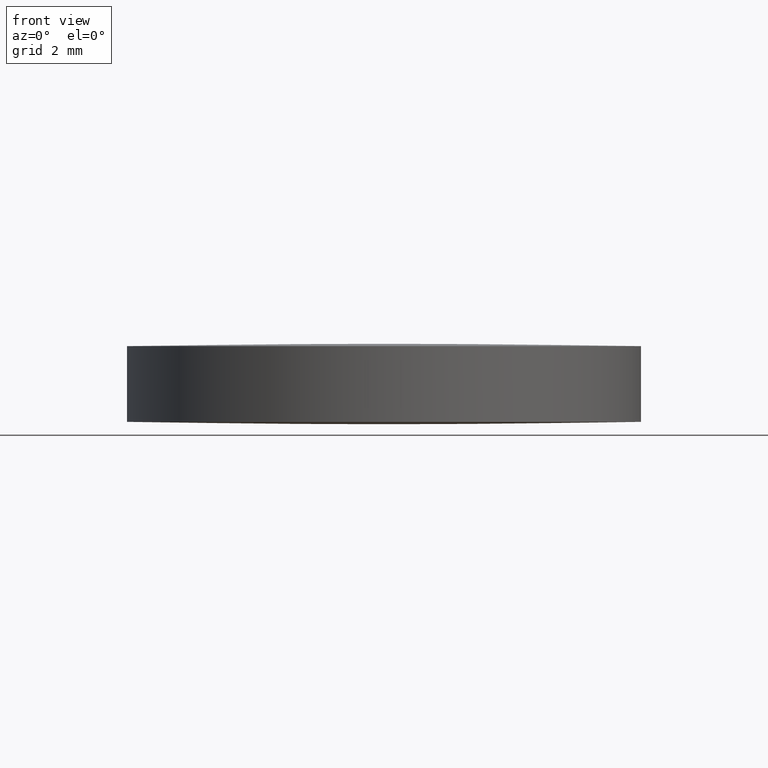
[diagram: clean part render]
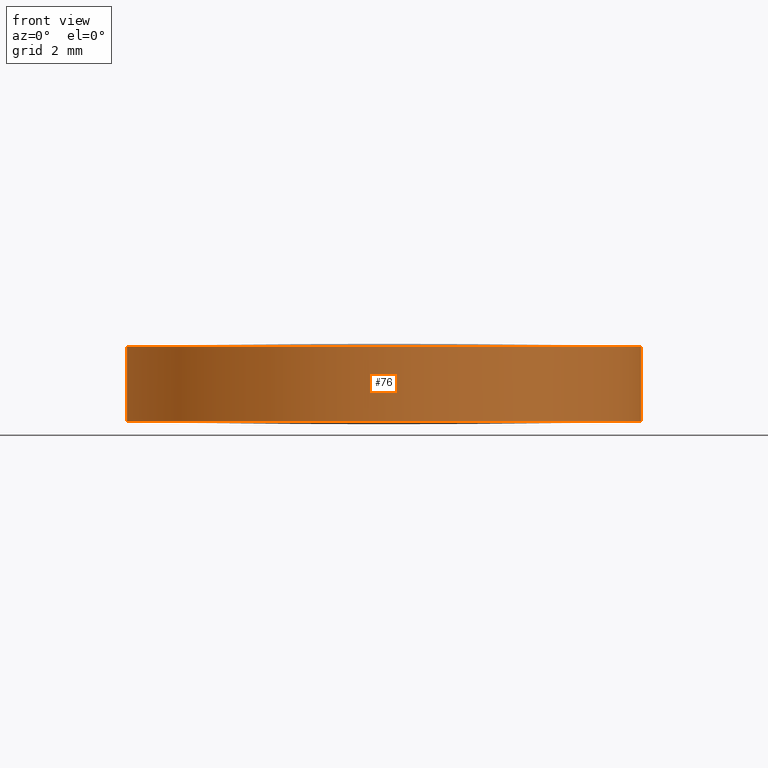
[diagram: same view with one face highlighted and labeled with its STEP entity id]
A machine part, front view. The second image highlights one B-rep face of the part: STEP entity #76.
In plain terms, the highlighted cylindrical surface (partial cylindrical patch) has radius 6.35 mm, axis along (0, 0, 1).
Its self-contained STEP definition (entity closure, byte-faithful):
#6 = ORIENTED_EDGE ( 'NONE', *, *, #123, .T. ) ;
#13 = CARTESIAN_POINT ( 'NONE',  ( 2.498001805406600200E-016, 1.221245327087670000E-015, 0.06485478633533430000 ) ) ;
#16 = ORIENTED_EDGE ( 'NONE', *, *, #143, .T. ) ;
#20 = LINE ( 'NONE', #110, #267 ) ;
#27 = CARTESIAN_POINT ( 'NONE',  ( 2.498001805406600200E-016, 1.221245327087670000E-015, 1.935145213664670100 ) ) ;
#28 = AXIS2_PLACEMENT_3D ( 'NONE', #132, #31, #199 ) ;
#31 = DIRECTION ( 'NONE',  ( -0.0000000000000000000, -0.0000000000000000000, -1.000000000000000000 ) ) ;
#37 = CYLINDRICAL_SURFACE ( 'NONE', #247, 6.349999999999999600 ) ;
#40 = DIRECTION ( 'NONE',  ( 1.000000000000000000, 0.0000000000000000000, 0.0000000000000000000 ) ) ;
#49 = AXIS2_PLACEMENT_3D ( 'NONE', #27, #134, #157 ) ;
#57 = DIRECTION ( 'NONE',  ( 0.0000000000000000000, 0.0000000000000000000, 1.000000000000000000 ) ) ;
#69 = VERTEX_POINT ( 'NONE', #227 ) ;
#75 = EDGE_CURVE ( 'NONE', #148, #69, #172, .T. ) ;
#76 = ADVANCED_FACE ( 'NONE', ( #89 ), #37, .T. ) ;
#81 = EDGE_CURVE ( 'NONE', #257, #290, #135, .T. ) ;
#82 = DIRECTION ( 'NONE',  ( 1.000000000000000000, 0.0000000000000000000, 0.0000000000000000000 ) ) ;
#89 = FACE_OUTER_BOUND ( 'NONE', #106, .T. ) ;
#100 = CIRCLE ( 'NONE', #283, 6.349999999999999600 ) ;
#104 = DIRECTION ( 'NONE',  ( -0.0000000000000000000, -0.0000000000000000000, -1.000000000000000000 ) ) ;
#106 = EDGE_LOOP ( 'NONE', ( #164, #154, #173, #6, #196, #16 ) ) ;
#110 = CARTESIAN_POINT ( 'NONE',  ( 6.349999999999999600, 1.221245327087670000E-015, 0.06485478633533430000 ) ) ;
#111 = CIRCLE ( 'NONE', #49, 6.349999999999999600 ) ;
#114 = CARTESIAN_POINT ( 'NONE',  ( -6.349999999999999600, 1.998896044546239400E-015, 0.06485478633533430000 ) ) ;
#116 = CARTESIAN_POINT ( 'NONE',  ( -6.349999999999999600, 1.998896044546239400E-015, 1.935145213664670100 ) ) ;
#123 = EDGE_CURVE ( 'NONE', #294, #148, #20, .T. ) ;
#129 = CIRCLE ( 'NONE', #272, 6.349999999999999600 ) ;
#132 = CARTESIAN_POINT ( 'NONE',  ( 2.498001805406600200E-016, 1.221245327087670000E-015, 1.935145213664670100 ) ) ;
#134 = DIRECTION ( 'NONE',  ( -0.0000000000000000000, -0.0000000000000000000, -1.000000000000000000 ) ) ;
#135 = LINE ( 'NONE', #252, #218 ) ;
#143 = EDGE_CURVE ( 'NONE', #69, #290, #111, .T. ) ;
#148 = VERTEX_POINT ( 'NONE', #179 ) ;
#154 = ORIENTED_EDGE ( 'NONE', *, *, #216, .F. ) ;
#157 = DIRECTION ( 'NONE',  ( 1.000000000000000000, 0.0000000000000000000, 0.0000000000000000000 ) ) ;
#164 = ORIENTED_EDGE ( 'NONE', *, *, #81, .F. ) ;
#172 = CIRCLE ( 'NONE', #28, 6.349999999999999600 ) ;
#173 = ORIENTED_EDGE ( 'NONE', *, *, #190, .F. ) ;
#179 = CARTESIAN_POINT ( 'NONE',  ( 6.349999999999999600, 1.221245327087670000E-015, 1.935145213664670100 ) ) ;
#186 = CARTESIAN_POINT ( 'NONE',  ( 2.498001805406600200E-016, 1.221245327087670000E-015, 0.06485478633533430000 ) ) ;
#189 = VERTEX_POINT ( 'NONE', #275 ) ;
#190 = EDGE_CURVE ( 'NONE', #294, #189, #100, .T. ) ;
#196 = ORIENTED_EDGE ( 'NONE', *, *, #75, .T. ) ;
#199 = DIRECTION ( 'NONE',  ( 1.000000000000000000, 0.0000000000000000000, 0.0000000000000000000 ) ) ;
#216 = EDGE_CURVE ( 'NONE', #189, #257, #129, .T. ) ;
#218 = VECTOR ( 'NONE', #230, 1000.000000000000000 ) ;
#227 = CARTESIAN_POINT ( 'NONE',  ( 1.028031763049777000E-013, -6.350000000000384200, 1.935145213664669400 ) ) ;
#230 = DIRECTION ( 'NONE',  ( 0.0000000000000000000, 0.0000000000000000000, 1.000000000000000000 ) ) ;
#247 = AXIS2_PLACEMENT_3D ( 'NONE', #13, #250, #253 ) ;
#249 = CARTESIAN_POINT ( 'NONE',  ( 2.498001805406600200E-016, 1.221245327087670000E-015, 0.06485478633533430000 ) ) ;
#250 = DIRECTION ( 'NONE',  ( 0.0000000000000000000, 0.0000000000000000000, 1.000000000000000000 ) ) ;
#252 = CARTESIAN_POINT ( 'NONE',  ( -6.349999999999999600, 1.998896044546239400E-015, 0.06485478633533430000 ) ) ;
#253 = DIRECTION ( 'NONE',  ( 1.000000000000000000, 0.0000000000000000000, 0.0000000000000000000 ) ) ;
#255 = CARTESIAN_POINT ( 'NONE',  ( 6.349999999999999600, 1.221245327087670000E-015, 0.06485478633533430000 ) ) ;
#257 = VERTEX_POINT ( 'NONE', #114 ) ;
#267 = VECTOR ( 'NONE', #57, 1000.000000000000000 ) ;
#272 = AXIS2_PLACEMENT_3D ( 'NONE', #186, #295, #40 ) ;
#275 = CARTESIAN_POINT ( 'NONE',  ( -1.028031763049777000E-013, -6.350000000000383300, 0.06485478633533377200 ) ) ;
#283 = AXIS2_PLACEMENT_3D ( 'NONE', #249, #104, #82 ) ;
#290 = VERTEX_POINT ( 'NONE', #116 ) ;
#294 = VERTEX_POINT ( 'NONE', #255 ) ;
#295 = DIRECTION ( 'NONE',  ( -0.0000000000000000000, -0.0000000000000000000, -1.000000000000000000 ) ) ;